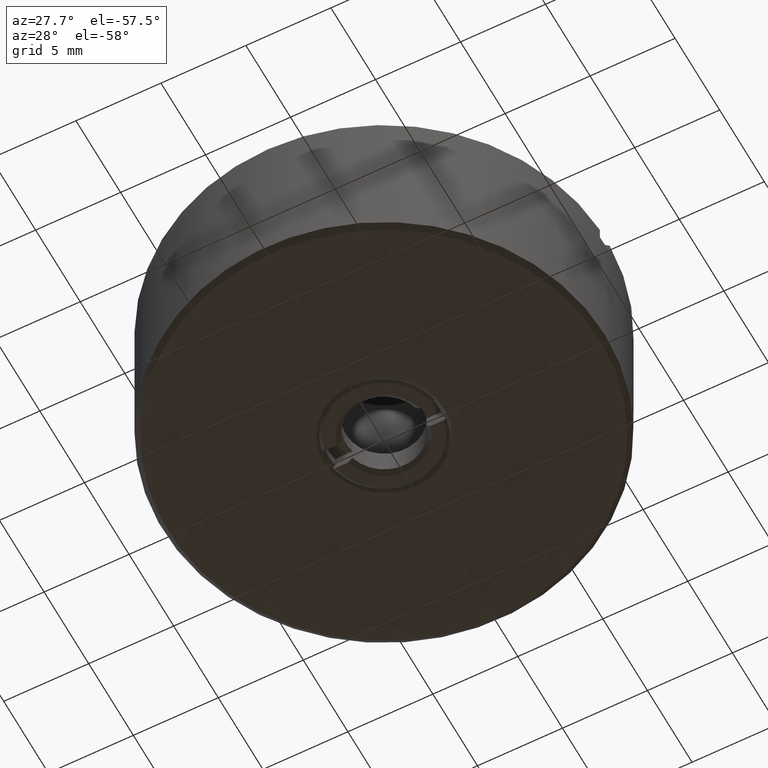
[diagram: clean part render]
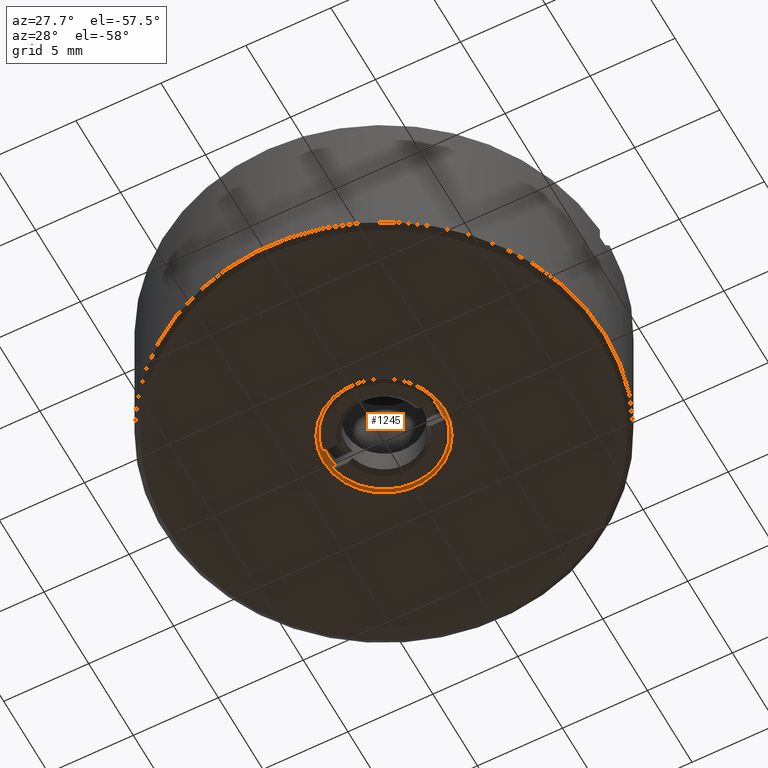
[diagram: same view with one face highlighted and labeled with its STEP entity id]
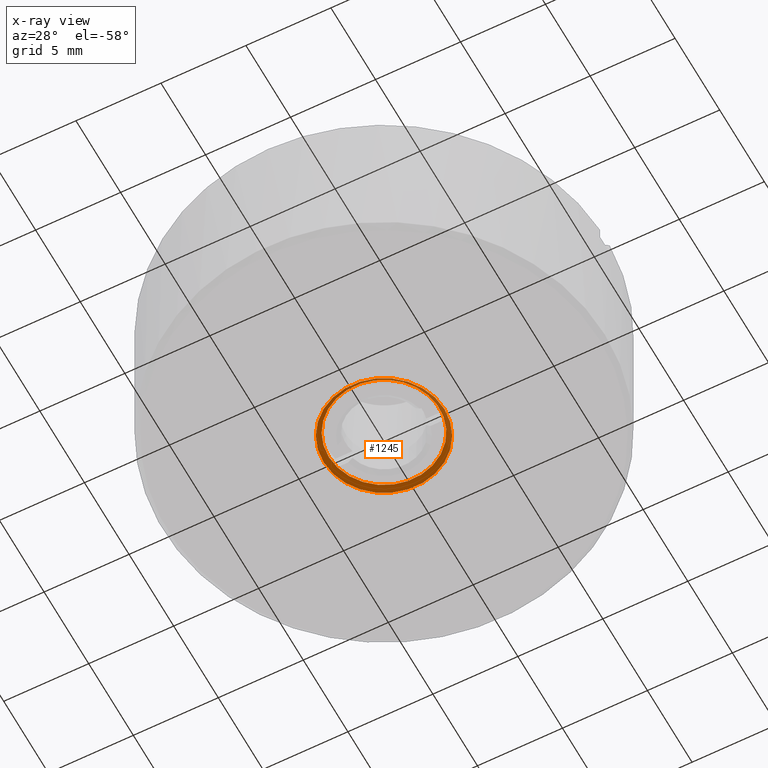
[diagram: x-ray of the same camera — body ghosted, the highlighted face saturated]
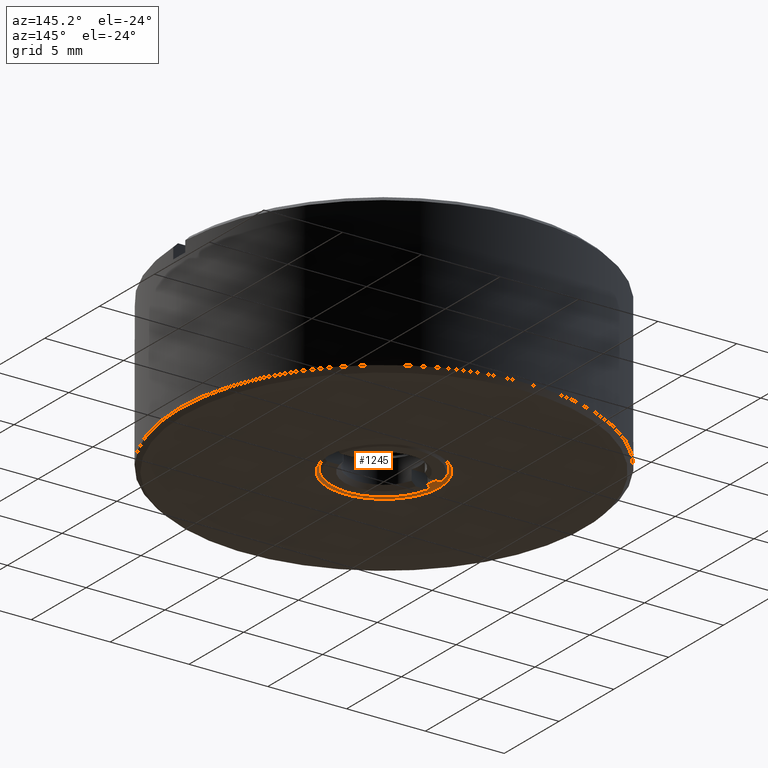
[diagram: same view with one face highlighted and labeled with its STEP entity id]
A machine part, auxiliary view. The second image highlights one B-rep face of the part: STEP entity #1245.
The next image is the same camera in x-ray: the body ghosted, the highlighted face saturated — about 0% of this face is hidden behind the body in this view.
A second angle (auxiliary view) of the same face is appended — the face is thin or edge-on in the first view.
In plain terms, the highlighted conical surface has half-angle 45 deg.
Its self-contained STEP definition (entity closure, byte-faithful):
#64 = EDGE_CURVE ( 'NONE', #1169, #1169, #649, .T. ) ;
#145 = ORIENTED_EDGE ( 'NONE', *, *, #1018, .T. ) ;
#169 = CARTESIAN_POINT ( 'NONE',  ( 0.000000000000000000, 0.000000000000000000, -4.699999999957071850 ) ) ;
#215 = EDGE_LOOP ( 'NONE', ( #145 ) ) ;
#344 = DIRECTION ( 'NONE',  ( -1.000000000000000000, 0.000000000000000000, 0.000000000000000000 ) ) ;
#459 = DIRECTION ( 'NONE',  ( 0.000000000000000000, 0.000000000000000000, -1.000000000000000000 ) ) ;
#469 = CARTESIAN_POINT ( 'NONE',  ( -3.549999999961528374, 0.000000000000000000, -4.999999999938609108 ) ) ;
#649 = CIRCLE ( 'NONE', #1609, 3.250000000036834535 ) ;
#698 = DIRECTION ( 'NONE',  ( 0.000000000000000000, 0.000000000000000000, -1.000000000000000000 ) ) ;
#731 = FACE_BOUND ( 'NONE', #1165, .T. ) ;
#742 = AXIS2_PLACEMENT_3D ( 'NONE', #860, #698, #344 ) ;
#823 = VERTEX_POINT ( 'NONE', #469 ) ;
#860 = CARTESIAN_POINT ( 'NONE',  ( 0.000000000000000000, 0.000000000000000000, -4.999999999881765689 ) ) ;
#875 = ORIENTED_EDGE ( 'NONE', *, *, #64, .F. ) ;
#957 = DIRECTION ( 'NONE',  ( -1.000000000000000000, 0.000000000000000000, 0.000000000000000000 ) ) ;
#1012 = DIRECTION ( 'NONE',  ( -0.000000000000000000, -0.000000000000000000, -1.000000000000000000 ) ) ;
#1018 = EDGE_CURVE ( 'NONE', #823, #823, #1532, .T. ) ;
#1047 = AXIS2_PLACEMENT_3D ( 'NONE', #1076, #459, #957 ) ;
#1076 = CARTESIAN_POINT ( 'NONE',  ( 0.000000000000000000, 0.000000000000000000, -4.999999999938609108 ) ) ;
#1165 = EDGE_LOOP ( 'NONE', ( #875 ) ) ;
#1169 = VERTEX_POINT ( 'NONE', #1542 ) ;
#1245 = ADVANCED_FACE ( 'NONE', ( #1461, #731 ), #1270, .F. ) ;
#1246 = DIRECTION ( 'NONE',  ( -1.000000000000000000, 0.000000000000000000, 0.000000000000000000 ) ) ;
#1270 = CONICAL_SURFACE ( 'NONE', #742, 3.549999999904684955, 0.7853981633974482790 ) ;
#1461 = FACE_OUTER_BOUND ( 'NONE', #215, .T. ) ;
#1532 = CIRCLE ( 'NONE', #1047, 3.549999999961528374 ) ;
#1542 = CARTESIAN_POINT ( 'NONE',  ( -3.250000000036834535, 0.000000000000000000, -4.699999999957071850 ) ) ;
#1609 = AXIS2_PLACEMENT_3D ( 'NONE', #169, #1012, #1246 ) ;